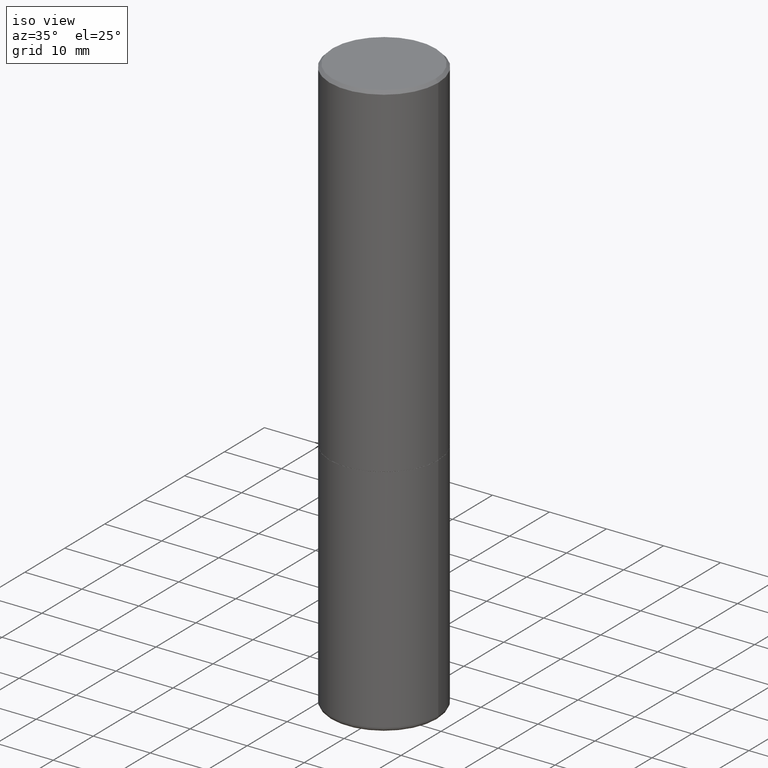
[diagram: clean part render]
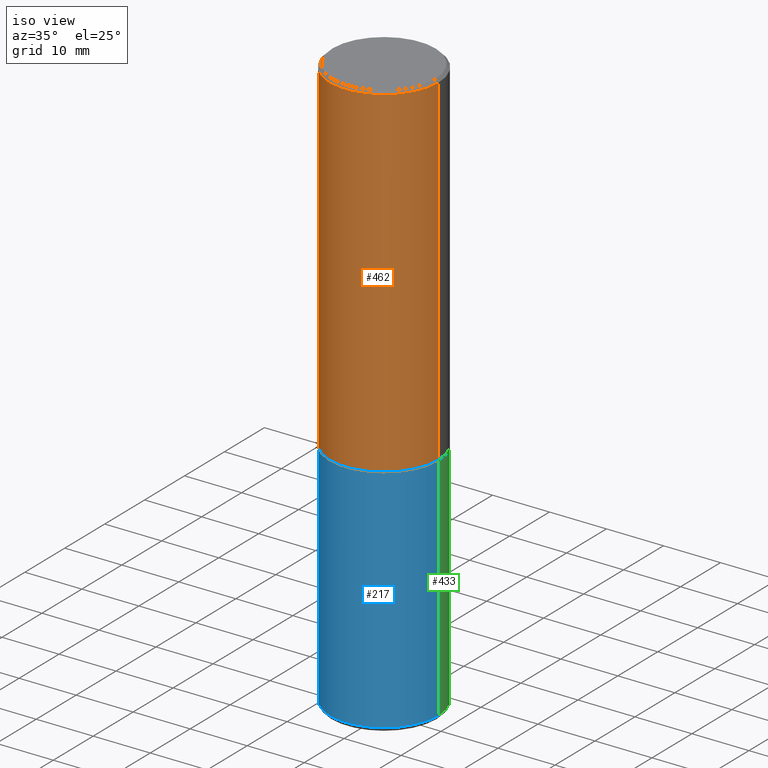
[diagram: same view with three faces highlighted in distinct colors, each labeled with its STEP entity id]
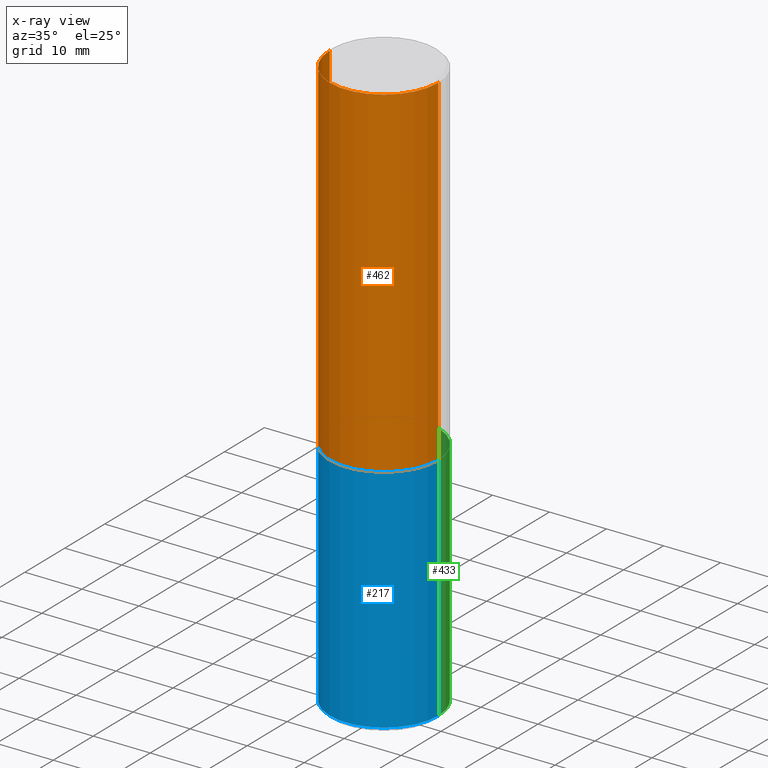
[diagram: x-ray of the same camera — body ghosted, the three highlighted faces saturated]
A machine part, iso view with three faces highlighted in distinct colors.
The next image is the same camera in x-ray (body ghosted, the three faces saturated) — at least one of them is partly hidden behind the body in this view.
Their STEP definitions:

[orange] entity #462 — the highlighted cylindrical surface (partial cylindrical patch) has radius 9.525 mm, axis along (-0, 0, 1).
#4 = DIRECTION ( 'NONE',  ( -2.445468806185136597E-29, 3.491481338843145583E-15, 1.000000000000000000 ) ) ;
#16 = CARTESIAN_POINT ( 'NONE',  ( 0.3749999999999992784, -2.642516375941182506E-15, -0.02000000000000018430 ) ) ;
#18 = LINE ( 'NONE', #466, #221 ) ;
#27 = CYLINDRICAL_SURFACE ( 'NONE', #308, 0.3749999999999993894 ) ;
#31 = DIRECTION ( 'NONE',  ( -2.445468806185136877E-29, 3.491481338843145188E-15, 1.000000000000000000 ) ) ;
#41 = DIRECTION ( 'NONE',  ( 1.000000000000000000, -6.982962677686265133E-15, 0.000000000000000000 ) ) ;
#54 = ORIENTED_EDGE ( 'NONE', *, *, #318, .T. ) ;
#79 = CARTESIAN_POINT ( 'NONE',  ( -0.3749999999999992784, 2.548781377355481985E-15, -0.02000000000000018430 ) ) ;
#107 = EDGE_CURVE ( 'NONE', #197, #363, #250, .T. ) ;
#113 = CIRCLE ( 'NONE', #283, 0.3749999999999992784 ) ;
#128 = AXIS2_PLACEMENT_3D ( 'NONE', #196, #279, #41 ) ;
#150 = CARTESIAN_POINT ( 'NONE',  ( 0.3749999999999995559, -1.090738770254597397E-14, -2.373999999999999666 ) ) ;
#156 = ORIENTED_EDGE ( 'NONE', *, *, #254, .F. ) ;
#163 = ORIENTED_EDGE ( 'NONE', *, *, #377, .T. ) ;
#189 = CARTESIAN_POINT ( 'NONE',  ( 4.890937612370317825E-31, -6.982962677686355704E-17, -0.02000000000000018430 ) ) ;
#196 = CARTESIAN_POINT ( 'NONE',  ( 5.805542945883513814E-29, -8.288776698413627111E-15, -2.373999999999999666 ) ) ;
#197 = VERTEX_POINT ( 'NONE', #309 ) ;
#201 = ORIENTED_EDGE ( 'NONE', *, *, #107, .F. ) ;
#205 = VERTEX_POINT ( 'NONE', #150 ) ;
#221 = VECTOR ( 'NONE', #238, 39.37007874015748143 ) ;
#238 = DIRECTION ( 'NONE',  ( -2.445468806185136877E-29, 3.491481338843145188E-15, 1.000000000000000000 ) ) ;
#250 = LINE ( 'NONE', #454, #290 ) ;
#254 = EDGE_CURVE ( 'NONE', #363, #451, #113, .T. ) ;
#279 = DIRECTION ( 'NONE',  ( -2.445468806185136597E-29, 3.491481338843145583E-15, 1.000000000000000000 ) ) ;
#283 = AXIS2_PLACEMENT_3D ( 'NONE', #189, #4, #420 ) ;
#290 = VECTOR ( 'NONE', #31, 39.37007874015748143 ) ;
#294 = CARTESIAN_POINT ( 'NONE',  ( 0.000000000000000000, 0.000000000000000000, 0.000000000000000000 ) ) ;
#295 = EDGE_LOOP ( 'NONE', ( #201, #163, #54, #156 ) ) ;
#308 = AXIS2_PLACEMENT_3D ( 'NONE', #294, #324, #329 ) ;
#309 = CARTESIAN_POINT ( 'NONE',  ( -0.3749999999999995559, -1.514767903494871085E-15, -2.373999999999999666 ) ) ;
#318 = EDGE_CURVE ( 'NONE', #205, #451, #18, .T. ) ;
#324 = DIRECTION ( 'NONE',  ( -2.445468806185136597E-29, 3.491481338843145583E-15, 1.000000000000000000 ) ) ;
#327 = FACE_OUTER_BOUND ( 'NONE', #295, .T. ) ;
#329 = DIRECTION ( 'NONE',  ( 1.000000000000000000, -6.982962677686266711E-15, 4.876176775795936353E-29 ) ) ;
#349 = CIRCLE ( 'NONE', #128, 0.3749999999999995559 ) ;
#363 = VERTEX_POINT ( 'NONE', #79 ) ;
#377 = EDGE_CURVE ( 'NONE', #197, #205, #349, .T. ) ;
#420 = DIRECTION ( 'NONE',  ( 1.000000000000000000, -6.982962677686267499E-15, 0.000000000000000000 ) ) ;
#451 = VERTEX_POINT ( 'NONE', #16 ) ;
#454 = CARTESIAN_POINT ( 'NONE',  ( -0.3749999999999993894, 2.664535259100371358E-15, -1.844600658845586515E-29 ) ) ;
#462 = ADVANCED_FACE ( 'NONE', ( #327 ), #27, .T. ) ;
#466 = CARTESIAN_POINT ( 'NONE',  ( 0.3749999999999993894, -2.618611004132345678E-15, 1.828566290923473120E-29 ) ) ;

[blue] entity #217 — the highlighted cylindrical surface (partial cylindrical patch) has radius 9.525 mm, axis along (-0, 0, 1).
#25 = CARTESIAN_POINT ( 'NONE',  ( -0.3749999999999993339, -8.412191282553172474E-15, -3.970001142308074993 ) ) ;
#26 = VERTEX_POINT ( 'NONE', #25 ) ;
#28 = CARTESIAN_POINT ( 'NONE',  ( 0.3749999999999993894, -2.618611004132345678E-15, 1.828566290923473120E-29 ) ) ;
#34 = CARTESIAN_POINT ( 'NONE',  ( -0.3749999999999993894, 2.664535259100371358E-15, -1.844600658845586515E-29 ) ) ;
#45 = EDGE_CURVE ( 'NONE', #26, #126, #104, .T. ) ;
#47 = EDGE_CURVE ( 'NONE', #126, #373, #220, .T. ) ;
#68 = CARTESIAN_POINT ( 'NONE',  ( 0.3749999999999993339, -1.647979590768696204E-14, -3.970001142308074993 ) ) ;
#78 = CARTESIAN_POINT ( 'NONE',  ( 0.000000000000000000, 0.000000000000000000, 0.000000000000000000 ) ) ;
#82 = AXIS2_PLACEMENT_3D ( 'NONE', #78, #463, #426 ) ;
#95 = DIRECTION ( 'NONE',  ( 1.000000000000000000, -6.982962677686269866E-15, 0.000000000000000000 ) ) ;
#104 = CIRCLE ( 'NONE', #357, 0.3749999999999993339 ) ;
#126 = VERTEX_POINT ( 'NONE', #68 ) ;
#136 = DIRECTION ( 'NONE',  ( -2.445468806185136877E-29, 3.491481338843145188E-15, 1.000000000000000000 ) ) ;
#151 = VECTOR ( 'NONE', #342, 39.37007874015748143 ) ;
#161 = CARTESIAN_POINT ( 'NONE',  ( -0.3749999999999995559, -8.412191282553170896E-15, -2.375000000000000000 ) ) ;
#165 = ORIENTED_EDGE ( 'NONE', *, *, #45, .T. ) ;
#166 = DIRECTION ( 'NONE',  ( -2.445468806185136597E-29, 3.491481338843145583E-15, 1.000000000000000000 ) ) ;
#169 = VECTOR ( 'NONE', #136, 39.37007874015748143 ) ;
#179 = CARTESIAN_POINT ( 'NONE',  ( 9.708513954033757613E-29, -1.386118490355461518E-14, -3.970001142308074993 ) ) ;
#217 = ADVANCED_FACE ( 'NONE', ( #340 ), #269, .T. ) ;
#220 = LINE ( 'NONE', #28, #169 ) ;
#233 = EDGE_CURVE ( 'NONE', #26, #296, #418, .T. ) ;
#241 = ORIENTED_EDGE ( 'NONE', *, *, #233, .F. ) ;
#269 = CYLINDRICAL_SURFACE ( 'NONE', #82, 0.3749999999999993894 ) ;
#270 = CARTESIAN_POINT ( 'NONE',  ( 5.807988414689699417E-29, -8.292268179752470118E-15, -2.375000000000000000 ) ) ;
#281 = DIRECTION ( 'NONE',  ( 1.000000000000000000, -6.982962677686265133E-15, 0.000000000000000000 ) ) ;
#296 = VERTEX_POINT ( 'NONE', #161 ) ;
#317 = CARTESIAN_POINT ( 'NONE',  ( 0.3749999999999995559, -1.091087918388481698E-14, -2.375000000000000000 ) ) ;
#320 = EDGE_CURVE ( 'NONE', #296, #373, #478, .T. ) ;
#322 = ORIENTED_EDGE ( 'NONE', *, *, #47, .T. ) ;
#340 = FACE_OUTER_BOUND ( 'NONE', #472, .T. ) ;
#342 = DIRECTION ( 'NONE',  ( -2.445468806185136877E-29, 3.491481338843145188E-15, 1.000000000000000000 ) ) ;
#357 = AXIS2_PLACEMENT_3D ( 'NONE', #179, #481, #95 ) ;
#369 = ORIENTED_EDGE ( 'NONE', *, *, #320, .F. ) ;
#373 = VERTEX_POINT ( 'NONE', #317 ) ;
#418 = LINE ( 'NONE', #34, #151 ) ;
#426 = DIRECTION ( 'NONE',  ( 1.000000000000000000, -6.982962677686266711E-15, 4.876176775795936353E-29 ) ) ;
#463 = DIRECTION ( 'NONE',  ( -2.445468806185136597E-29, 3.491481338843145583E-15, 1.000000000000000000 ) ) ;
#472 = EDGE_LOOP ( 'NONE', ( #241, #165, #322, #369 ) ) ;
#478 = CIRCLE ( 'NONE', #491, 0.3749999999999995559 ) ;
#481 = DIRECTION ( 'NONE',  ( -2.445468806185136597E-29, 3.491481338843145583E-15, 1.000000000000000000 ) ) ;
#491 = AXIS2_PLACEMENT_3D ( 'NONE', #270, #166, #281 ) ;

[green] entity #433 — the highlighted cylindrical surface (partial cylindrical patch) has radius 9.525 mm, axis along (-0, 0, 1).
#3 = EDGE_CURVE ( 'NONE', #373, #296, #477, .T. ) ;
#17 = ORIENTED_EDGE ( 'NONE', *, *, #47, .F. ) ;
#25 = CARTESIAN_POINT ( 'NONE',  ( -0.3749999999999993339, -8.412191282553172474E-15, -3.970001142308074993 ) ) ;
#26 = VERTEX_POINT ( 'NONE', #25 ) ;
#28 = CARTESIAN_POINT ( 'NONE',  ( 0.3749999999999993894, -2.618611004132345678E-15, 1.828566290923473120E-29 ) ) ;
#34 = CARTESIAN_POINT ( 'NONE',  ( -0.3749999999999993894, 2.664535259100371358E-15, -1.844600658845586515E-29 ) ) ;
#47 = EDGE_CURVE ( 'NONE', #126, #373, #220, .T. ) ;
#50 = CARTESIAN_POINT ( 'NONE',  ( 0.000000000000000000, 0.000000000000000000, 0.000000000000000000 ) ) ;
#52 = EDGE_LOOP ( 'NONE', ( #434, #371, #328, #17 ) ) ;
#66 = DIRECTION ( 'NONE',  ( -2.445468806185136597E-29, 3.491481338843145583E-15, 1.000000000000000000 ) ) ;
#68 = CARTESIAN_POINT ( 'NONE',  ( 0.3749999999999993339, -1.647979590768696204E-14, -3.970001142308074993 ) ) ;
#102 = CARTESIAN_POINT ( 'NONE',  ( 5.807988414689699417E-29, -8.292268179752470118E-15, -2.375000000000000000 ) ) ;
#126 = VERTEX_POINT ( 'NONE', #68 ) ;
#136 = DIRECTION ( 'NONE',  ( -2.445468806185136877E-29, 3.491481338843145188E-15, 1.000000000000000000 ) ) ;
#151 = VECTOR ( 'NONE', #342, 39.37007874015748143 ) ;
#160 = AXIS2_PLACEMENT_3D ( 'NONE', #264, #232, #416 ) ;
#161 = CARTESIAN_POINT ( 'NONE',  ( -0.3749999999999995559, -8.412191282553170896E-15, -2.375000000000000000 ) ) ;
#169 = VECTOR ( 'NONE', #136, 39.37007874015748143 ) ;
#186 = CIRCLE ( 'NONE', #160, 0.3749999999999993339 ) ;
#203 = DIRECTION ( 'NONE',  ( -2.445468806185136597E-29, 3.491481338843145583E-15, 1.000000000000000000 ) ) ;
#220 = LINE ( 'NONE', #28, #169 ) ;
#228 = AXIS2_PLACEMENT_3D ( 'NONE', #50, #203, #359 ) ;
#230 = EDGE_CURVE ( 'NONE', #126, #26, #186, .T. ) ;
#232 = DIRECTION ( 'NONE',  ( -2.445468806185136597E-29, 3.491481338843145583E-15, 1.000000000000000000 ) ) ;
#233 = EDGE_CURVE ( 'NONE', #26, #296, #418, .T. ) ;
#240 = FACE_OUTER_BOUND ( 'NONE', #52, .T. ) ;
#264 = CARTESIAN_POINT ( 'NONE',  ( 9.708513954033757613E-29, -1.386118490355461518E-14, -3.970001142308074993 ) ) ;
#272 = AXIS2_PLACEMENT_3D ( 'NONE', #102, #66, #489 ) ;
#296 = VERTEX_POINT ( 'NONE', #161 ) ;
#317 = CARTESIAN_POINT ( 'NONE',  ( 0.3749999999999995559, -1.091087918388481698E-14, -2.375000000000000000 ) ) ;
#328 = ORIENTED_EDGE ( 'NONE', *, *, #3, .F. ) ;
#342 = DIRECTION ( 'NONE',  ( -2.445468806185136877E-29, 3.491481338843145188E-15, 1.000000000000000000 ) ) ;
#359 = DIRECTION ( 'NONE',  ( 1.000000000000000000, -6.982962677686266711E-15, 4.876176775795936353E-29 ) ) ;
#371 = ORIENTED_EDGE ( 'NONE', *, *, #233, .T. ) ;
#373 = VERTEX_POINT ( 'NONE', #317 ) ;
#396 = CYLINDRICAL_SURFACE ( 'NONE', #228, 0.3749999999999993894 ) ;
#416 = DIRECTION ( 'NONE',  ( 1.000000000000000000, -6.982962677686269866E-15, 0.000000000000000000 ) ) ;
#418 = LINE ( 'NONE', #34, #151 ) ;
#433 = ADVANCED_FACE ( 'NONE', ( #240 ), #396, .T. ) ;
#434 = ORIENTED_EDGE ( 'NONE', *, *, #230, .T. ) ;
#477 = CIRCLE ( 'NONE', #272, 0.3749999999999995559 ) ;
#489 = DIRECTION ( 'NONE',  ( 1.000000000000000000, -6.982962677686265133E-15, 0.000000000000000000 ) ) ;